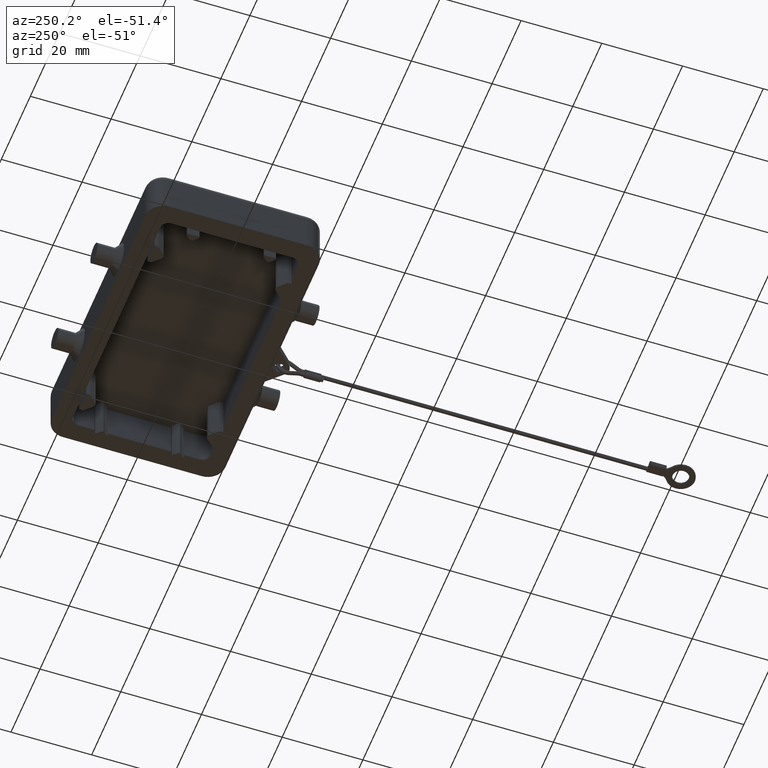
[diagram: clean part render]
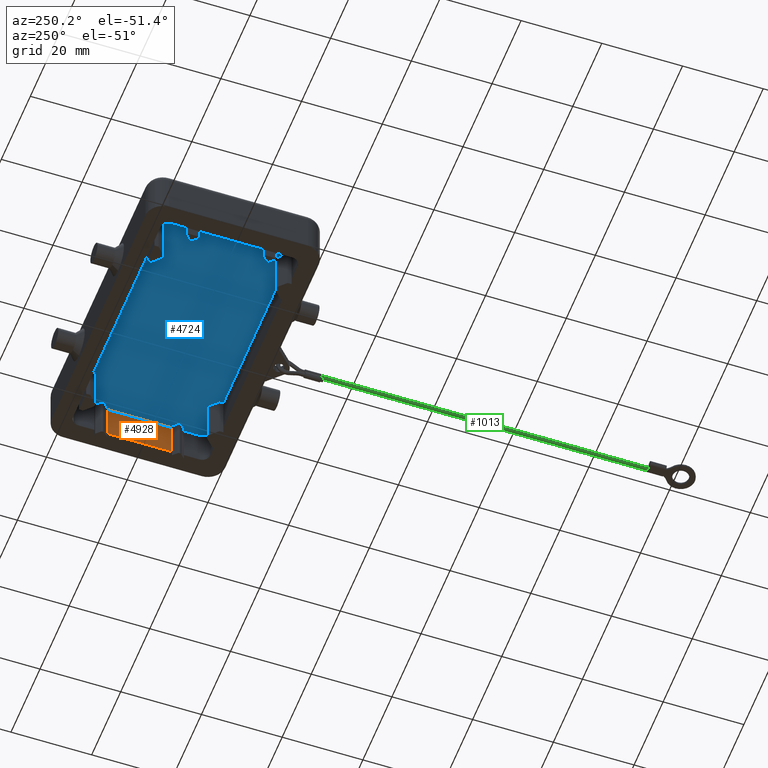
[diagram: same view with three faces highlighted in distinct colors, each labeled with its STEP entity id]
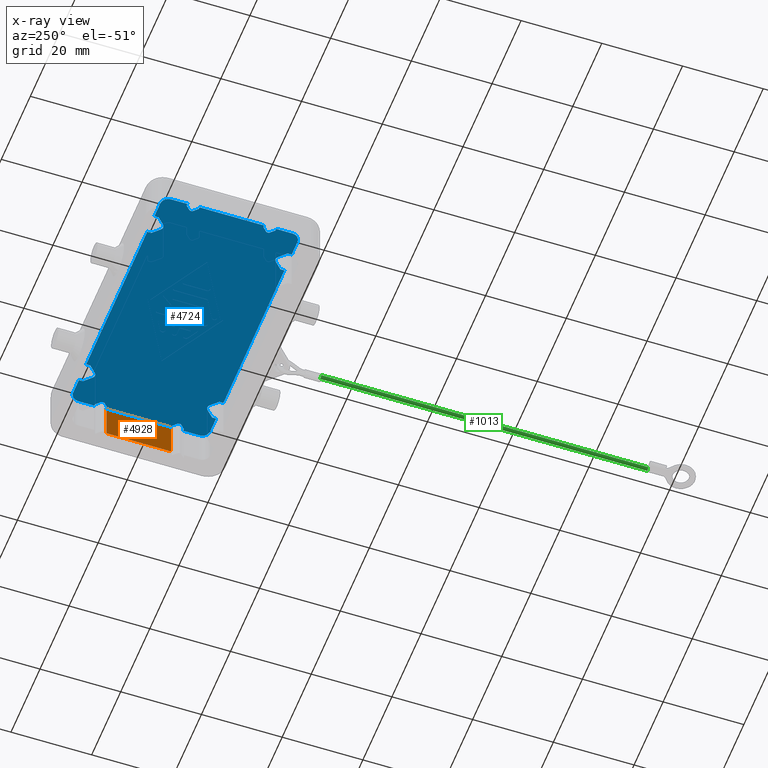
[diagram: x-ray of the same camera — body ghosted, the three highlighted faces saturated]
A machine part, auxiliary view with three faces highlighted in distinct colors.
The next image is the same camera in x-ray (body ghosted, the three faces saturated) — at least one of them is partly hidden behind the body in this view.
Their STEP definitions:

[orange] entity #4928 — the highlighted planar face has unit normal (1, 0, 0).
#4524=CARTESIAN_POINT('',(32.0,7.999999999999996,9.0));
#4525=VERTEX_POINT('',#4524);
#4532=CARTESIAN_POINT('',(32.0,-7.999999999999998,9.0));
#4533=VERTEX_POINT('',#4532);
#4534=CARTESIAN_POINT('',(32.0,7.999999999999996,9.0));
#4535=DIRECTION('',(0.0,-1.0,0.0));
#4536=VECTOR('',#4535,15.999999999999995);
#4537=LINE('',#4534,#4536);
#4538=EDGE_CURVE('',#4525,#4533,#4537,.T.);
#4730=CARTESIAN_POINT('',(32.0,7.999999999999996,0.0));
#4731=VERTEX_POINT('',#4730);
#4857=CARTESIAN_POINT('',(32.0,7.999999999999996,9.0));
#4858=DIRECTION('',(0.0,0.0,-1.0));
#4859=VECTOR('',#4858,9.0);
#4860=LINE('',#4857,#4859);
#4861=EDGE_CURVE('',#4525,#4731,#4860,.T.);
#4905=CARTESIAN_POINT('',(31.999999999999996,15.000000000000004,0.0));
#4906=DIRECTION('',(1.0,0.0,0.0));
#4907=DIRECTION('',(0.0,0.0,-1.0));
#4908=AXIS2_PLACEMENT_3D('',#4905,#4906,#4907);
#4909=PLANE('',#4908);
#4910=ORIENTED_EDGE('',*,*,#4861,.T.);
#4911=CARTESIAN_POINT('',(32.0,-7.999999999999998,0.0));
#4912=VERTEX_POINT('',#4911);
#4913=CARTESIAN_POINT('',(32.0,-7.999999999999998,0.0));
#4914=DIRECTION('',(0.0,1.0,0.0));
#4915=VECTOR('',#4914,15.999999999999995);
#4916=LINE('',#4913,#4915);
#4917=EDGE_CURVE('',#4912,#4731,#4916,.T.);
#4918=ORIENTED_EDGE('',*,*,#4917,.F.);
#4919=CARTESIAN_POINT('',(32.0,-7.999999999999998,0.0));
#4920=DIRECTION('',(0.0,0.0,1.0));
#4921=VECTOR('',#4920,9.0);
#4922=LINE('',#4919,#4921);
#4923=EDGE_CURVE('',#4912,#4533,#4922,.T.);
#4924=ORIENTED_EDGE('',*,*,#4923,.T.);
#4925=ORIENTED_EDGE('',*,*,#4538,.F.);
#4926=EDGE_LOOP('',(#4910,#4918,#4924,#4925));
#4927=FACE_OUTER_BOUND('',#4926,.T.);
#4928=ADVANCED_FACE('',(#4927),#4909,.F.);

[blue] entity #4724 — the highlighted planar face has unit normal (0, 0, 1).
#3805=CARTESIAN_POINT('',(-31.500000000000004,11.0,9.0));
#3806=VERTEX_POINT('',#3805);
#3813=CARTESIAN_POINT('',(-30.494974746830586,9.994974746830573,9.0));
#3814=VERTEX_POINT('',#3813);
#3815=CARTESIAN_POINT('',(-30.494974746830586,9.994974746830573,9.0));
#3816=DIRECTION('',(-0.707106781186544,0.707106781186551,0.0));
#3817=VECTOR('',#3816,1.421320343559650);
#3818=LINE('',#3815,#3817);
#3819=EDGE_CURVE('',#3814,#3806,#3818,.T.);
#3866=CARTESIAN_POINT('',(-30.494974746830582,9.005025253169411,9.0));
#3867=VERTEX_POINT('',#3866);
#3868=CARTESIAN_POINT('',(-30.989949493661172,9.499999999999995,9.0));
#3869=DIRECTION('',(0.0,0.0,1.0));
#3870=DIRECTION('',(-0.707106781186549,0.707106781186546,0.0));
#3871=AXIS2_PLACEMENT_3D('',#3868,#3869,#3870);
#3872=CIRCLE('',#3871,0.700000000000003);
#3873=EDGE_CURVE('',#3867,#3814,#3872,.T.);
#3898=CARTESIAN_POINT('',(-31.500000000000004,7.999999999999996,9.0));
#3899=VERTEX_POINT('',#3898);
#3900=CARTESIAN_POINT('',(-31.500000000000004,7.999999999999996,9.0));
#3901=DIRECTION('',(0.707106781186550,0.707106781186545,0.0));
#3902=VECTOR('',#3901,1.421320343559644);
#3903=LINE('',#3900,#3902);
#3904=EDGE_CURVE('',#3899,#3867,#3903,.T.);
#3929=CARTESIAN_POINT('',(-32.0,7.999999999999996,9.0));
#3930=VERTEX_POINT('',#3929);
#3931=CARTESIAN_POINT('',(-32.0,7.999999999999996,9.0));
#3932=DIRECTION('',(1.0,0.0,0.0));
#3933=VECTOR('',#3932,0.499999999999996);
#3934=LINE('',#3931,#3933);
#3935=EDGE_CURVE('',#3930,#3899,#3934,.T.);
#3997=CARTESIAN_POINT('',(-32.0,10.999999999999996,9.0));
#3998=VERTEX_POINT('',#3997);
#4005=CARTESIAN_POINT('',(-31.500000000000004,11.0,9.0));
#4006=DIRECTION('',(-1.0,0.0,0.0));
#4007=VECTOR('',#4006,0.499999999999996);
#4008=LINE('',#4005,#4007);
#4009=EDGE_CURVE('',#3806,#3998,#4008,.T.);
#4035=CARTESIAN_POINT('',(-32.0,-7.999999999999998,9.0));
#4036=VERTEX_POINT('',#4035);
#4037=CARTESIAN_POINT('',(-32.0,-7.999999999999998,9.0));
#4038=DIRECTION('',(0.0,1.0,0.0));
#4039=VECTOR('',#4038,15.999999999999995);
#4040=LINE('',#4037,#4039);
#4041=EDGE_CURVE('',#4036,#3930,#4040,.T.);
#4074=CARTESIAN_POINT('',(-32.000000000000014,14.999999999999996,9.0));
#4075=VERTEX_POINT('',#4074);
#4082=CARTESIAN_POINT('',(-32.0,10.999999999999996,9.0));
#4083=DIRECTION('',(0.0,1.0,0.0));
#4084=VECTOR('',#4083,4.0);
#4085=LINE('',#4082,#4084);
#4086=EDGE_CURVE('',#3998,#4075,#4085,.T.);
#4144=CARTESIAN_POINT('',(-31.500000000000004,-7.999999999999994,9.0));
#4145=VERTEX_POINT('',#4144);
#4152=CARTESIAN_POINT('',(-30.494974746830586,-9.005025253169421,9.0));
#4153=VERTEX_POINT('',#4152);
#4154=CARTESIAN_POINT('',(-30.494974746830586,-9.005025253169421,9.0));
#4155=DIRECTION('',(-0.707106781186544,0.707106781186551,0.0));
#4156=VECTOR('',#4155,1.421320343559651);
#4157=LINE('',#4154,#4156);
#4158=EDGE_CURVE('',#4153,#4145,#4157,.T.);
#4205=CARTESIAN_POINT('',(-30.494974746830582,-9.994974746830586,9.0));
#4206=VERTEX_POINT('',#4205);
#4207=CARTESIAN_POINT('',(-30.989949493661172,-9.500000000000000,9.0));
#4208=DIRECTION('',(0.0,0.0,1.0));
#4209=DIRECTION('',(-0.707106781186549,0.707106781186546,0.0));
#4210=AXIS2_PLACEMENT_3D('',#4207,#4208,#4209);
#4211=CIRCLE('',#4210,0.700000000000003);
#4212=EDGE_CURVE('',#4206,#4153,#4211,.T.);
#4237=CARTESIAN_POINT('',(-31.500000000000004,-10.999999999999998,9.0));
#4238=VERTEX_POINT('',#4237);
#4239=CARTESIAN_POINT('',(-31.500000000000004,-10.999999999999998,9.0));
#4240=DIRECTION('',(0.707106781186551,0.707106781186544,0.0));
#4241=VECTOR('',#4240,1.421320343559643);
#4242=LINE('',#4239,#4241);
#4243=EDGE_CURVE('',#4238,#4206,#4242,.T.);
#4266=CARTESIAN_POINT('',(-32.0,-10.999999999999998,9.0));
#4267=VERTEX_POINT('',#4266);
#4268=CARTESIAN_POINT('',(-32.0,-10.999999999999998,9.0));
#4269=DIRECTION('',(1.0,0.0,0.0));
#4270=VECTOR('',#4269,0.499999999999996);
#4271=LINE('',#4268,#4270);
#4272=EDGE_CURVE('',#4267,#4238,#4271,.T.);
#4297=CARTESIAN_POINT('',(-31.500000000000004,-7.999999999999994,9.0));
#4298=DIRECTION('',(-1.0,0.0,0.0));
#4299=VECTOR('',#4298,0.499999999999996);
#4300=LINE('',#4297,#4299);
#4301=EDGE_CURVE('',#4145,#4036,#4300,.T.);
#4327=CARTESIAN_POINT('',(-32.0,-15.0,9.0));
#4328=VERTEX_POINT('',#4327);
#4329=CARTESIAN_POINT('',(-32.0,-15.0,9.0));
#4330=DIRECTION('',(0.0,1.0,0.0));
#4331=VECTOR('',#4330,4.000000000000002);
#4332=LINE('',#4329,#4331);
#4333=EDGE_CURVE('',#4328,#4267,#4332,.T.);
#4352=CARTESIAN_POINT('',(9.365651E-016,1.110223E-015,9.0));
#4353=DIRECTION('',(0.0,0.0,1.0));
#4354=DIRECTION('',(1.0,0.0,0.0));
#4355=AXIS2_PLACEMENT_3D('',#4352,#4353,#4354);
#4356=PLANE('',#4355);
#4357=ORIENTED_EDGE('',*,*,#4009,.T.);
#4358=ORIENTED_EDGE('',*,*,#4086,.T.);
#4359=CARTESIAN_POINT('',(-30.000000000000004,16.999999999999993,9.0));
#4360=VERTEX_POINT('',#4359);
#4361=CARTESIAN_POINT('',(-30.000000000000004,14.999999999999996,9.0));
#4362=DIRECTION('',(0.0,0.0,-1.0));
#4363=DIRECTION('',(0.0,1.0,0.0));
#4364=AXIS2_PLACEMENT_3D('',#4361,#4362,#4363);
#4365=CIRCLE('',#4364,2.000000000000002);
#4366=EDGE_CURVE('',#4075,#4360,#4365,.T.);
#4367=ORIENTED_EDGE('',*,*,#4366,.T.);
#4368=CARTESIAN_POINT('',(-26.000000000000007,16.999999999999996,9.0));
#4369=VERTEX_POINT('',#4368);
#4370=CARTESIAN_POINT('',(-30.000000000000004,16.999999999999993,9.0));
#4371=DIRECTION('',(1.0,0.0,0.0));
#4372=VECTOR('',#4371,3.999999999999996);
#4373=LINE('',#4370,#4372);
#4374=EDGE_CURVE('',#4360,#4369,#4373,.T.);
#4375=ORIENTED_EDGE('',*,*,#4374,.T.);
#4376=CARTESIAN_POINT('',(-26.000000000000007,15.999999999999993,9.0));
#4377=VERTEX_POINT('',#4376);
#4378=CARTESIAN_POINT('',(-26.000000000000007,16.999999999999996,9.0));
#4379=DIRECTION('',(0.0,-1.0,0.0));
#4380=VECTOR('',#4379,1.000000000000004);
#4381=LINE('',#4378,#4380);
#4382=EDGE_CURVE('',#4369,#4377,#4381,.T.);
#4383=ORIENTED_EDGE('',*,*,#4382,.T.);
#4384=CARTESIAN_POINT('',(-24.207106781186553,14.207106781186543,9.0));
#4385=VERTEX_POINT('',#4384);
#4386=CARTESIAN_POINT('',(-26.000000000000007,15.999999999999993,9.0));
#4387=DIRECTION('',(0.707106781186548,-0.707106781186547,0.0));
#4388=VECTOR('',#4387,2.535533905932737);
#4389=LINE('',#4386,#4388);
#4390=EDGE_CURVE('',#4377,#4385,#4389,.T.);
#4391=ORIENTED_EDGE('',*,*,#4390,.T.);
#4392=CARTESIAN_POINT('',(-22.792893218813461,14.207106781186543,9.0));
#4393=VERTEX_POINT('',#4392);
#4394=CARTESIAN_POINT('',(-23.500000000000007,14.914213562373089,9.0));
#4395=DIRECTION('',(0.0,0.0,1.000000000000000));
#4396=DIRECTION('',(-0.707106781186548,0.707106781186548,0.0));
#4397=AXIS2_PLACEMENT_3D('',#4394,#4395,#4396);
#4398=CIRCLE('',#4397,1.000000000000006);
#4399=EDGE_CURVE('',#4385,#4393,#4398,.T.);
#4400=ORIENTED_EDGE('',*,*,#4399,.T.);
#4401=CARTESIAN_POINT('',(-21.000000000000007,15.999999999999993,9.0));
#4402=VERTEX_POINT('',#4401);
#4403=CARTESIAN_POINT('',(-22.792893218813461,14.207106781186543,9.0));
#4404=DIRECTION('',(0.707106781186548,0.707106781186547,0.0));
#4405=VECTOR('',#4404,2.535533905932737);
#4406=LINE('',#4403,#4405);
#4407=EDGE_CURVE('',#4393,#4402,#4406,.T.);
#4408=ORIENTED_EDGE('',*,*,#4407,.T.);
#4409=CARTESIAN_POINT('',(-21.000000000000007,16.999999999999996,9.0));
#4410=VERTEX_POINT('',#4409);
#4411=CARTESIAN_POINT('',(-21.000000000000007,15.999999999999993,9.0));
#4412=DIRECTION('',(0.0,1.0,0.0));
#4413=VECTOR('',#4412,1.000000000000004);
#4414=LINE('',#4411,#4413);
#4415=EDGE_CURVE('',#4402,#4410,#4414,.T.);
#4416=ORIENTED_EDGE('',*,*,#4415,.T.);
#4417=CARTESIAN_POINT('',(21.000000000000007,16.999999999999996,9.0));
#4418=VERTEX_POINT('',#4417);
#4419=CARTESIAN_POINT('',(-21.000000000000007,16.999999999999996,9.0));
#4420=DIRECTION('',(1.0,0.0,0.0));
#4421=VECTOR('',#4420,42.000000000000014);
#4422=LINE('',#4419,#4421);
#4423=EDGE_CURVE('',#4410,#4418,#4422,.T.);
#4424=ORIENTED_EDGE('',*,*,#4423,.T.);
#4425=CARTESIAN_POINT('',(21.000000000000007,15.999999999999993,9.0));
#4426=VERTEX_POINT('',#4425);
#4427=CARTESIAN_POINT('',(21.000000000000007,16.999999999999996,9.0));
#4428=DIRECTION('',(0.0,-1.0,0.0));
#4429=VECTOR('',#4428,1.000000000000004);
#4430=LINE('',#4427,#4429);
#4431=EDGE_CURVE('',#4418,#4426,#4430,.T.);
#4432=ORIENTED_EDGE('',*,*,#4431,.T.);
#4433=CARTESIAN_POINT('',(22.792893218813461,14.207106781186543,9.0));
#4434=VERTEX_POINT('',#4433);
#4435=CARTESIAN_POINT('',(21.000000000000007,15.999999999999993,9.0));
#4436=DIRECTION('',(0.707106781186548,-0.707106781186547,0.0));
#4437=VECTOR('',#4436,2.535533905932737);
#4438=LINE('',#4435,#4437);
#4439=EDGE_CURVE('',#4426,#4434,#4438,.T.);
#4440=ORIENTED_EDGE('',*,*,#4439,.T.);
#4441=CARTESIAN_POINT('',(24.207106781186553,14.207106781186543,9.0));
#4442=VERTEX_POINT('',#4441);
#4443=CARTESIAN_POINT('',(23.500000000000007,14.914213562373089,9.0));
#4444=DIRECTION('',(0.0,0.0,1.000000000000000));
#4445=DIRECTION('',(-0.707106781186548,0.707106781186548,0.0));
#4446=AXIS2_PLACEMENT_3D('',#4443,#4444,#4445);
#4447=CIRCLE('',#4446,1.000000000000006);
#4448=EDGE_CURVE('',#4434,#4442,#4447,.T.);
#4449=ORIENTED_EDGE('',*,*,#4448,.T.);
#4450=CARTESIAN_POINT('',(26.000000000000007,15.999999999999993,9.0));
#4451=VERTEX_POINT('',#4450);
#4452=CARTESIAN_POINT('',(24.207106781186553,14.207106781186543,9.0));
#4453=DIRECTION('',(0.707106781186548,0.707106781186547,0.0));
#4454=VECTOR('',#4453,2.535533905932737);
#4455=LINE('',#4452,#4454);
#4456=EDGE_CURVE('',#4442,#4451,#4455,.T.);
#4457=ORIENTED_EDGE('',*,*,#4456,.T.);
#4458=CARTESIAN_POINT('',(26.000000000000007,16.999999999999996,9.0));
#4459=VERTEX_POINT('',#4458);
#4460=CARTESIAN_POINT('',(26.000000000000007,15.999999999999993,9.0));
#4461=DIRECTION('',(0.0,1.0,0.0));
#4462=VECTOR('',#4461,1.000000000000004);
#4463=LINE('',#4460,#4462);
#4464=EDGE_CURVE('',#4451,#4459,#4463,.T.);
#4465=ORIENTED_EDGE('',*,*,#4464,.T.);
#4466=CARTESIAN_POINT('',(29.999999999999996,17.000000000000007,9.0));
#4467=VERTEX_POINT('',#4466);
#4468=CARTESIAN_POINT('',(26.000000000000007,16.999999999999996,9.0));
#4469=DIRECTION('',(1.0,0.0,0.0));
#4470=VECTOR('',#4469,3.999999999999989);
#4471=LINE('',#4468,#4470);
#4472=EDGE_CURVE('',#4459,#4467,#4471,.T.);
#4473=ORIENTED_EDGE('',*,*,#4472,.T.);
#4474=CARTESIAN_POINT('',(31.999999999999996,15.000000000000004,9.0));
#4475=VERTEX_POINT('',#4474);
#4476=CARTESIAN_POINT('',(29.999999999999996,15.000000000000004,9.0));
#4477=DIRECTION('',(0.0,0.0,-1.0));
#4478=DIRECTION('',(1.0,0.0,0.0));
#4479=AXIS2_PLACEMENT_3D('',#4476,#4477,#4478);
#4480=CIRCLE('',#4479,2.000000000000002);
#4481=EDGE_CURVE('',#4467,#4475,#4480,.T.);
#4482=ORIENTED_EDGE('',*,*,#4481,.T.);
#4483=CARTESIAN_POINT('',(32.0,10.999999999999996,9.0));
#4484=VERTEX_POINT('',#4483);
#4485=CARTESIAN_POINT('',(31.999999999999996,15.000000000000004,9.0));
#4486=DIRECTION('',(0.0,-1.0,0.0));
#4487=VECTOR('',#4486,4.000000000000007);
#4488=LINE('',#4485,#4487);
#4489=EDGE_CURVE('',#4475,#4484,#4488,.T.);
#4490=ORIENTED_EDGE('',*,*,#4489,.T.);
#4491=CARTESIAN_POINT('',(31.500000000000004,11.0,9.0));
#4492=VERTEX_POINT('',#4491);
#4493=CARTESIAN_POINT('',(32.0,10.999999999999996,9.0));
#4494=DIRECTION('',(-1.0,0.0,0.0));
#4495=VECTOR('',#4494,0.499999999999996);
#4496=LINE('',#4493,#4495);
#4497=EDGE_CURVE('',#4484,#4492,#4496,.T.);
#4498=ORIENTED_EDGE('',*,*,#4497,.T.);
#4499=CARTESIAN_POINT('',(30.494974746830586,9.994974746830573,9.0));
#4500=VERTEX_POINT('',#4499);
#4501=CARTESIAN_POINT('',(31.500000000000004,11.0,9.0));
#4502=DIRECTION('',(-0.707106781186544,-0.707106781186551,0.0));
#4503=VECTOR('',#4502,1.421320343559650);
#4504=LINE('',#4501,#4503);
#4505=EDGE_CURVE('',#4492,#4500,#4504,.T.);
#4506=ORIENTED_EDGE('',*,*,#4505,.T.);
#4507=CARTESIAN_POINT('',(30.494974746830582,9.005025253169411,9.0));
#4508=VERTEX_POINT('',#4507);
#4509=CARTESIAN_POINT('',(30.989949493661172,9.499999999999995,9.0));
#4510=DIRECTION('',(0.0,0.0,1.0));
#4511=DIRECTION('',(0.707106781186549,0.707106781186546,0.0));
#4512=AXIS2_PLACEMENT_3D('',#4509,#4510,#4511);
#4513=CIRCLE('',#4512,0.700000000000003);
#4514=EDGE_CURVE('',#4500,#4508,#4513,.T.);
#4515=ORIENTED_EDGE('',*,*,#4514,.T.);
#4516=CARTESIAN_POINT('',(31.500000000000004,7.999999999999996,9.0));
#4517=VERTEX_POINT('',#4516);
#4518=CARTESIAN_POINT('',(30.494974746830582,9.005025253169411,9.0));
#4519=DIRECTION('',(0.707106781186550,-0.707106781186545,0.0));
#4520=VECTOR('',#4519,1.421320343559644);
#4521=LINE('',#4518,#4520);
#4522=EDGE_CURVE('',#4508,#4517,#4521,.T.);
#4523=ORIENTED_EDGE('',*,*,#4522,.T.);
#4524=CARTESIAN_POINT('',(32.0,7.999999999999996,9.0));
#4525=VERTEX_POINT('',#4524);
#4526=CARTESIAN_POINT('',(31.500000000000004,7.999999999999996,9.0));
#4527=DIRECTION('',(1.0,0.0,0.0));
#4528=VECTOR('',#4527,0.499999999999996);
#4529=LINE('',#4526,#4528);
#4530=EDGE_CURVE('',#4517,#4525,#4529,.T.);
#4531=ORIENTED_EDGE('',*,*,#4530,.T.);
#4532=CARTESIAN_POINT('',(32.0,-7.999999999999998,9.0));
#4533=VERTEX_POINT('',#4532);
#4534=CARTESIAN_POINT('',(32.0,7.999999999999996,9.0));
#4535=DIRECTION('',(0.0,-1.0,0.0));
#4536=VECTOR('',#4535,15.999999999999995);
#4537=LINE('',#4534,#4536);
#4538=EDGE_CURVE('',#4525,#4533,#4537,.T.);
#4539=ORIENTED_EDGE('',*,*,#4538,.T.);
#4540=CARTESIAN_POINT('',(31.500000000000004,-7.999999999999994,9.0));
#4541=VERTEX_POINT('',#4540);
#4542=CARTESIAN_POINT('',(32.0,-7.999999999999998,9.0));
#4543=DIRECTION('',(-1.0,0.0,0.0));
#4544=VECTOR('',#4543,0.499999999999996);
#4545=LINE('',#4542,#4544);
#4546=EDGE_CURVE('',#4533,#4541,#4545,.T.);
#4547=ORIENTED_EDGE('',*,*,#4546,.T.);
#4548=CARTESIAN_POINT('',(30.494974746830586,-9.005025253169421,9.0));
#4549=VERTEX_POINT('',#4548);
#4550=CARTESIAN_POINT('',(31.500000000000004,-7.999999999999994,9.0));
#4551=DIRECTION('',(-0.707106781186544,-0.707106781186551,0.0));
#4552=VECTOR('',#4551,1.421320343559651);
#4553=LINE('',#4550,#4552);
#4554=EDGE_CURVE('',#4541,#4549,#4553,.T.);
#4555=ORIENTED_EDGE('',*,*,#4554,.T.);
#4556=CARTESIAN_POINT('',(30.494974746830582,-9.994974746830586,9.0));
#4557=VERTEX_POINT('',#4556);
#4558=CARTESIAN_POINT('',(30.989949493661172,-9.500000000000000,9.0));
#4559=DIRECTION('',(0.0,0.0,1.0));
#4560=DIRECTION('',(0.707106781186549,0.707106781186546,0.0));
#4561=AXIS2_PLACEMENT_3D('',#4558,#4559,#4560);
#4562=CIRCLE('',#4561,0.700000000000003);
#4563=EDGE_CURVE('',#4549,#4557,#4562,.T.);
#4564=ORIENTED_EDGE('',*,*,#4563,.T.);
#4565=CARTESIAN_POINT('',(31.500000000000004,-10.999999999999998,9.0));
#4566=VERTEX_POINT('',#4565);
#4567=CARTESIAN_POINT('',(30.494974746830582,-9.994974746830586,9.0));
#4568=DIRECTION('',(0.707106781186551,-0.707106781186544,0.0));
#4569=VECTOR('',#4568,1.421320343559643);
#4570=LINE('',#4567,#4569);
#4571=EDGE_CURVE('',#4557,#4566,#4570,.T.);
#4572=ORIENTED_EDGE('',*,*,#4571,.T.);
#4573=CARTESIAN_POINT('',(32.0,-10.999999999999998,9.0));
#4574=VERTEX_POINT('',#4573);
#4575=CARTESIAN_POINT('',(31.500000000000004,-10.999999999999998,9.0));
#4576=DIRECTION('',(1.0,0.0,0.0));
#4577=VECTOR('',#4576,0.499999999999996);
#4578=LINE('',#4575,#4577);
#4579=EDGE_CURVE('',#4566,#4574,#4578,.T.);
#4580=ORIENTED_EDGE('',*,*,#4579,.T.);
#4581=CARTESIAN_POINT('',(32.000000000000007,-15.0,9.0));
#4582=VERTEX_POINT('',#4581);
#4583=CARTESIAN_POINT('',(32.0,-10.999999999999998,9.0));
#4584=DIRECTION('',(0.0,-1.0,0.0));
#4585=VECTOR('',#4584,4.000000000000002);
#4586=LINE('',#4583,#4585);
#4587=EDGE_CURVE('',#4574,#4582,#4586,.T.);
#4588=ORIENTED_EDGE('',*,*,#4587,.T.);
#4589=CARTESIAN_POINT('',(30.000000000000004,-16.999999999999996,9.0));
#4590=VERTEX_POINT('',#4589);
#4591=CARTESIAN_POINT('',(30.000000000000004,-15.0,9.0));
#4592=DIRECTION('',(0.0,0.0,-1.0));
#4593=DIRECTION('',(0.0,-1.0,0.0));
#4594=AXIS2_PLACEMENT_3D('',#4591,#4592,#4593);
#4595=CIRCLE('',#4594,2.000000000000004);
#4596=EDGE_CURVE('',#4582,#4590,#4595,.T.);
#4597=ORIENTED_EDGE('',*,*,#4596,.T.);
#4598=CARTESIAN_POINT('',(26.000000000000007,-16.999999999999996,9.0));
#4599=VERTEX_POINT('',#4598);
#4600=CARTESIAN_POINT('',(30.000000000000004,-16.999999999999996,9.0));
#4601=DIRECTION('',(-1.0,0.0,0.0));
#4602=VECTOR('',#4601,3.999999999999996);
#4603=LINE('',#4600,#4602);
#4604=EDGE_CURVE('',#4590,#4599,#4603,.T.);
#4605=ORIENTED_EDGE('',*,*,#4604,.T.);
#4606=CARTESIAN_POINT('',(26.000000000000007,-15.999999999999993,9.0));
#4607=VERTEX_POINT('',#4606);
#4608=CARTESIAN_POINT('',(26.000000000000007,-16.999999999999996,9.0));
#4609=DIRECTION('',(0.0,1.0,0.0));
#4610=VECTOR('',#4609,1.000000000000004);
#4611=LINE('',#4608,#4610);
#4612=EDGE_CURVE('',#4599,#4607,#4611,.T.);
#4613=ORIENTED_EDGE('',*,*,#4612,.T.);
#4614=CARTESIAN_POINT('',(24.207106781186553,-14.207106781186543,9.0));
#4615=VERTEX_POINT('',#4614);
#4616=CARTESIAN_POINT('',(26.000000000000007,-15.999999999999993,9.0));
#4617=DIRECTION('',(-0.707106781186548,0.707106781186547,0.0));
#4618=VECTOR('',#4617,2.535533905932737);
#4619=LINE('',#4616,#4618);
#4620=EDGE_CURVE('',#4607,#4615,#4619,.T.);
#4621=ORIENTED_EDGE('',*,*,#4620,.T.);
#4622=CARTESIAN_POINT('',(22.792893218813461,-14.207106781186543,9.0));
#4623=VERTEX_POINT('',#4622);
#4624=CARTESIAN_POINT('',(23.500000000000007,-14.914213562373089,9.0));
#4625=DIRECTION('',(0.0,0.0,1.000000000000000));
#4626=DIRECTION('',(-0.707106781186548,-0.707106781186548,0.0));
#4627=AXIS2_PLACEMENT_3D('',#4624,#4625,#4626);
#4628=CIRCLE('',#4627,1.000000000000006);
#4629=EDGE_CURVE('',#4615,#4623,#4628,.T.);
#4630=ORIENTED_EDGE('',*,*,#4629,.T.);
#4631=CARTESIAN_POINT('',(21.000000000000007,-15.999999999999993,9.0));
#4632=VERTEX_POINT('',#4631);
#4633=CARTESIAN_POINT('',(22.792893218813461,-14.207106781186543,9.0));
#4634=DIRECTION('',(-0.707106781186548,-0.707106781186547,0.0));
#4635=VECTOR('',#4634,2.535533905932737);
#4636=LINE('',#4633,#4635);
#4637=EDGE_CURVE('',#4623,#4632,#4636,.T.);
#4638=ORIENTED_EDGE('',*,*,#4637,.T.);
#4639=CARTESIAN_POINT('',(21.000000000000007,-16.999999999999996,9.0));
#4640=VERTEX_POINT('',#4639);
#4641=CARTESIAN_POINT('',(21.000000000000007,-15.999999999999993,9.0));
#4642=DIRECTION('',(0.0,-1.0,0.0));
#4643=VECTOR('',#4642,1.000000000000004);
#4644=LINE('',#4641,#4643);
#4645=EDGE_CURVE('',#4632,#4640,#4644,.T.);
#4646=ORIENTED_EDGE('',*,*,#4645,.T.);
#4647=CARTESIAN_POINT('',(-21.000000000000007,-16.999999999999996,9.0));
#4648=VERTEX_POINT('',#4647);
#4649=CARTESIAN_POINT('',(21.000000000000007,-16.999999999999996,9.0));
#4650=DIRECTION('',(-1.0,0.0,0.0));
#4651=VECTOR('',#4650,42.000000000000014);
#4652=LINE('',#4649,#4651);
#4653=EDGE_CURVE('',#4640,#4648,#4652,.T.);
#4654=ORIENTED_EDGE('',*,*,#4653,.T.);
#4655=CARTESIAN_POINT('',(-21.000000000000007,-15.999999999999993,9.0));
#4656=VERTEX_POINT('',#4655);
#4657=CARTESIAN_POINT('',(-21.000000000000007,-16.999999999999996,9.0));
#4658=DIRECTION('',(0.0,1.0,0.0));
#4659=VECTOR('',#4658,1.000000000000004);
#4660=LINE('',#4657,#4659);
#4661=EDGE_CURVE('',#4648,#4656,#4660,.T.);
#4662=ORIENTED_EDGE('',*,*,#4661,.T.);
#4663=CARTESIAN_POINT('',(-22.792893218813461,-14.207106781186543,9.0));
#4664=VERTEX_POINT('',#4663);
#4665=CARTESIAN_POINT('',(-21.000000000000007,-15.999999999999993,9.0));
#4666=DIRECTION('',(-0.707106781186548,0.707106781186547,0.0));
#4667=VECTOR('',#4666,2.535533905932737);
#4668=LINE('',#4665,#4667);
#4669=EDGE_CURVE('',#4656,#4664,#4668,.T.);
#4670=ORIENTED_EDGE('',*,*,#4669,.T.);
#4671=CARTESIAN_POINT('',(-24.207106781186553,-14.207106781186543,9.0));
#4672=VERTEX_POINT('',#4671);
#4673=CARTESIAN_POINT('',(-23.500000000000007,-14.914213562373089,9.0));
#4674=DIRECTION('',(0.0,0.0,1.000000000000000));
#4675=DIRECTION('',(-0.707106781186548,-0.707106781186548,0.0));
#4676=AXIS2_PLACEMENT_3D('',#4673,#4674,#4675);
#4677=CIRCLE('',#4676,1.000000000000006);
#4678=EDGE_CURVE('',#4664,#4672,#4677,.T.);
#4679=ORIENTED_EDGE('',*,*,#4678,.T.);
#4680=CARTESIAN_POINT('',(-26.000000000000007,-15.999999999999993,9.0));
#4681=VERTEX_POINT('',#4680);
#4682=CARTESIAN_POINT('',(-24.207106781186553,-14.207106781186543,9.0));
#4683=DIRECTION('',(-0.707106781186548,-0.707106781186547,0.0));
#4684=VECTOR('',#4683,2.535533905932737);
#4685=LINE('',#4682,#4684);
#4686=EDGE_CURVE('',#4672,#4681,#4685,.T.);
#4687=ORIENTED_EDGE('',*,*,#4686,.T.);
#4688=CARTESIAN_POINT('',(-26.000000000000007,-16.999999999999996,9.0));
#4689=VERTEX_POINT('',#4688);
#4690=CARTESIAN_POINT('',(-26.000000000000007,-15.999999999999993,9.0));
#4691=DIRECTION('',(0.0,-1.0,0.0));
#4692=VECTOR('',#4691,1.000000000000004);
#4693=LINE('',#4690,#4692);
#4694=EDGE_CURVE('',#4681,#4689,#4693,.T.);
#4695=ORIENTED_EDGE('',*,*,#4694,.T.);
#4696=CARTESIAN_POINT('',(-29.999999999999996,-16.999999999999996,9.0));
#4697=VERTEX_POINT('',#4696);
#4698=CARTESIAN_POINT('',(-26.000000000000007,-16.999999999999996,9.0));
#4699=DIRECTION('',(-1.0,0.0,0.0));
#4700=VECTOR('',#4699,3.999999999999989);
#4701=LINE('',#4698,#4700);
#4702=EDGE_CURVE('',#4689,#4697,#4701,.T.);
#4703=ORIENTED_EDGE('',*,*,#4702,.T.);
#4704=CARTESIAN_POINT('',(-29.999999999999996,-15.0,9.0));
#4705=DIRECTION('',(0.0,0.0,-1.0));
#4706=DIRECTION('',(-1.0,0.0,0.0));
#4707=AXIS2_PLACEMENT_3D('',#4704,#4705,#4706);
#4708=CIRCLE('',#4707,2.000000000000001);
#4709=EDGE_CURVE('',#4697,#4328,#4708,.T.);
#4710=ORIENTED_EDGE('',*,*,#4709,.T.);
#4711=ORIENTED_EDGE('',*,*,#4333,.T.);
#4712=ORIENTED_EDGE('',*,*,#4272,.T.);
#4713=ORIENTED_EDGE('',*,*,#4243,.T.);
#4714=ORIENTED_EDGE('',*,*,#4212,.T.);
#4715=ORIENTED_EDGE('',*,*,#4158,.T.);
#4716=ORIENTED_EDGE('',*,*,#4301,.T.);
#4717=ORIENTED_EDGE('',*,*,#4041,.T.);
#4718=ORIENTED_EDGE('',*,*,#3935,.T.);
#4719=ORIENTED_EDGE('',*,*,#3904,.T.);
#4720=ORIENTED_EDGE('',*,*,#3873,.T.);
#4721=ORIENTED_EDGE('',*,*,#3819,.T.);
#4722=EDGE_LOOP('',(#4357,#4358,#4367,#4375,#4383,#4391,#4400,#4408,#4416,#4424,#4432,#4440,#4449,#4457,#4465,#4473,#4482,#4490,#4498,#4506,#4515,#4523,#4531,#4539,#4547,#4555,#4564,#4572,#4580,#4588,#4597,#4605,#4613,#4621,#4630,#4638,#4646,#4654,#4662,#4670,#4679,#4687,#4695,#4703,#4710,#4711,#4712,#4713,#4714,#4715,#4716,#4717,#4718,#4719,#4720,#4721));
#4723=FACE_OUTER_BOUND('',#4722,.T.);
#4724=ADVANCED_FACE('',(#4723),#4356,.F.);

[green] entity #1013 — the highlighted cylindrical surface (edge-blend (fillet) strip) has radius 0.5 mm, axis along (0, 1, 0).
#633=CARTESIAN_POINT('',(-0.500000000000000,-114.500000000000000,1.0));
#634=VERTEX_POINT('',#633);
#635=CARTESIAN_POINT('',(-0.500000000000000,-33.500000000000000,1.0));
#636=VERTEX_POINT('',#635);
#637=CARTESIAN_POINT('',(-0.500000000000000,-114.500000000000000,1.0));
#638=DIRECTION('',(0.0,1.0,0.0));
#639=VECTOR('',#638,81.0);
#640=LINE('',#637,#639);
#641=EDGE_CURVE('',#634,#636,#640,.T.);
#643=CARTESIAN_POINT('',(0.500000000000000,-114.500000000000000,1.0));
#644=VERTEX_POINT('',#643);
#652=CARTESIAN_POINT('',(0.500000000000000,-33.500000000000000,1.0));
#653=VERTEX_POINT('',#652);
#654=CARTESIAN_POINT('',(0.500000000000000,-33.500000000000000,1.0));
#655=DIRECTION('',(0.0,-1.0,0.0));
#656=VECTOR('',#655,81.0);
#657=LINE('',#654,#656);
#658=EDGE_CURVE('',#653,#644,#657,.T.);
#944=CARTESIAN_POINT('',(0.0,-33.500000000000000,1.0));
#945=DIRECTION('',(0.0,-1.0,0.0));
#946=DIRECTION('',(-1.0,0.0,0.0));
#947=AXIS2_PLACEMENT_3D('',#944,#945,#946);
#948=CIRCLE('',#947,0.500000000000000);
#949=EDGE_CURVE('',#636,#653,#948,.T.);
#996=CARTESIAN_POINT('',(0.0,-118.500000000000000,1.0));
#997=DIRECTION('',(0.0,1.0,0.0));
#998=DIRECTION('',(-1.0,0.0,0.0));
#999=AXIS2_PLACEMENT_3D('',#996,#997,#998);
#1000=CYLINDRICAL_SURFACE('',#999,0.500000000000000);
#1001=ORIENTED_EDGE('',*,*,#641,.T.);
#1002=ORIENTED_EDGE('',*,*,#949,.T.);
#1003=ORIENTED_EDGE('',*,*,#658,.T.);
#1004=CARTESIAN_POINT('',(0.0,-114.500000000000000,1.0));
#1005=DIRECTION('',(0.0,1.0,0.0));
#1006=DIRECTION('',(-1.0,0.0,0.0));
#1007=AXIS2_PLACEMENT_3D('',#1004,#1005,#1006);
#1008=CIRCLE('',#1007,0.500000000000000);
#1009=EDGE_CURVE('',#644,#634,#1008,.T.);
#1010=ORIENTED_EDGE('',*,*,#1009,.T.);
#1011=EDGE_LOOP('',(#1001,#1002,#1003,#1010));
#1012=FACE_OUTER_BOUND('',#1011,.T.);
#1013=ADVANCED_FACE('',(#1012),#1000,.T.);